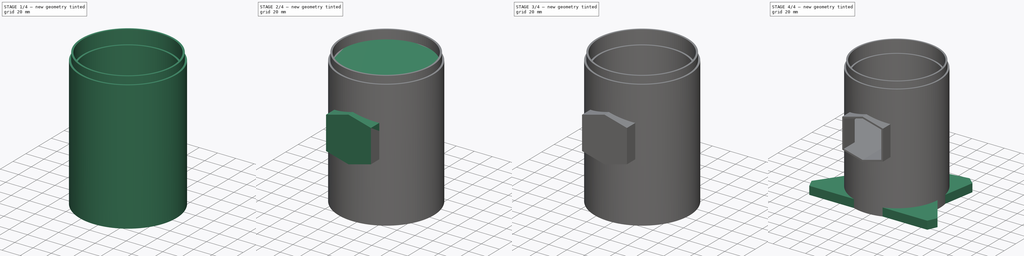
[diagram: build sequence overview — one tinted view per stage of 4, left to right]
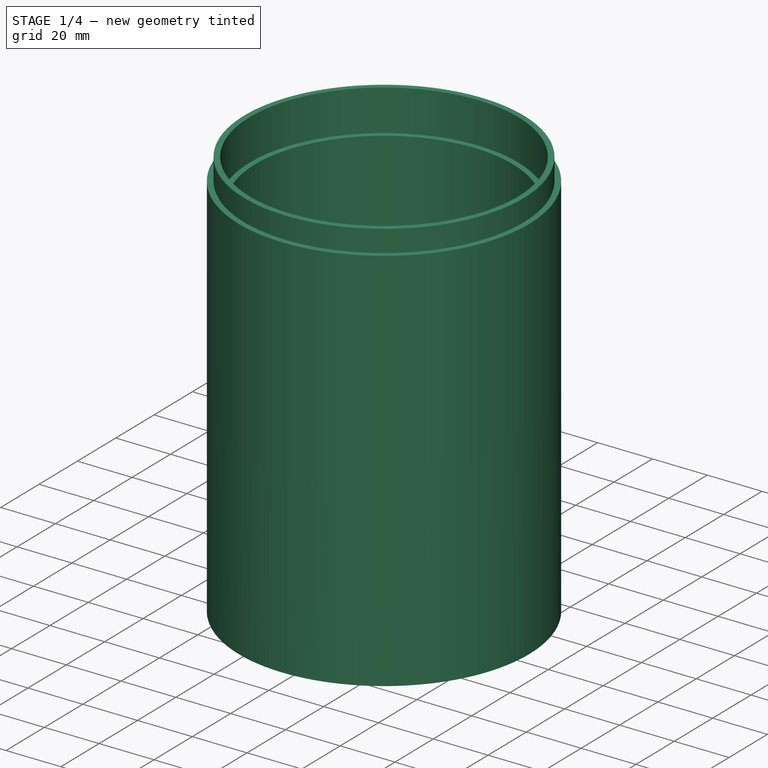
[diagram: stage 1 of 4 — iso view after this stage's code; geometry added in this stage tinted green]
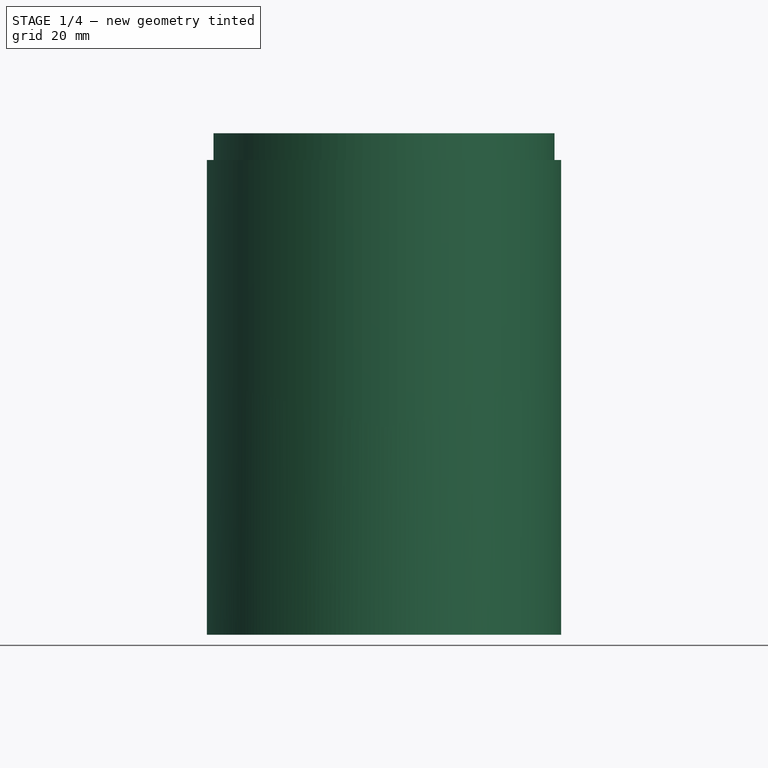
[diagram: stage 1 of 4 — front view after this stage's code; geometry added in this stage tinted green]
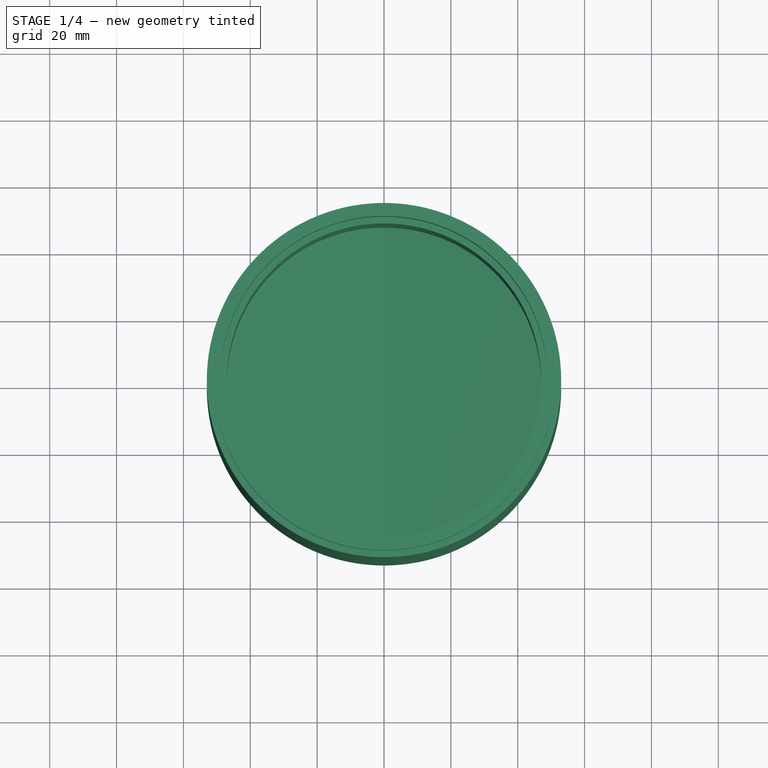
[diagram: stage 1 of 4 — top view after this stage's code; geometry added in this stage tinted green]
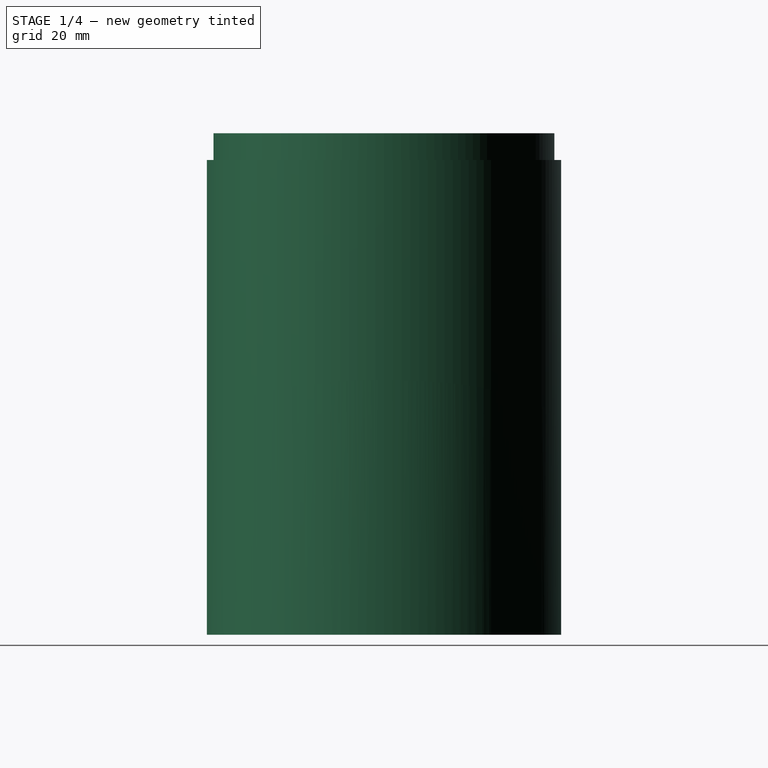
[diagram: stage 1 of 4 — right view after this stage's code; geometry added in this stage tinted green]
FCSTD DOCUMENT  (FreeCAD 0.20R28769 (Git))
Label: Aeroponics_Modular_4-Tower_Tower-Base
License: All rights reserved
LicenseURL: http://en.wikipedia.org/wiki/All_rights_reserved
objects: Sketcher::SketchObject×7, PartDesign::Body×7, PartDesign::Pad×6, Part::Cut×3, Part::MultiFuse×3, PartDesign::Revolution×1, PartDesign::FeatureBase×1
note: 35 computed .brp shape members not serialized (recipe doc carries the construction recipe); baked Part::Feature solids carry a one-line shape summary decoded from their .brp

FEATURE [Sketcher::SketchObject] Sketch
  FullyConstrained = true
  MapMode = 5
  Placement = pos=(0,0,0) rot=(1,0,0;1.5708rad)
  Support = -> [XZ_Plane]
  sketch-geometry (8):
    g0: LineSegment StartX=47 StartY=135 StartZ=0 EndX=47 EndY=0 EndZ=0
    g1: LineSegment StartX=47 StartY=0 StartZ=0 EndX=53 EndY=0 EndZ=0
    g2: LineSegment StartX=47 StartY=135 StartZ=0 EndX=49 EndY=135 EndZ=0
    g3: LineSegment StartX=49 StartY=135 StartZ=0 EndX=49 EndY=150 EndZ=0
    g4: LineSegment StartX=49 StartY=150 StartZ=0 EndX=51 EndY=150 EndZ=0
    g5: LineSegment StartX=51 StartY=150 StartZ=0 EndX=51 EndY=142 EndZ=0
    g6: LineSegment StartX=51 StartY=142 StartZ=0 EndX=53 EndY=142 EndZ=0
    g7: LineSegment StartX=53 StartY=142 StartZ=0 EndX=53 EndY=0 EndZ=0
  constraints (24):
    c: Vertical(g0)
    c: Coincident(g1,g0)
    c: Horizontal(g1)
    c: Coincident(g2,g0)
    c: Horizontal(g2)
    c: Coincident(g3,g2)
    c: Vertical(g3)
    c: Coincident(g4,g3)
    c: Coincident(g5,g4)
    c: Vertical(g5)
    c: Coincident(g6,g5)
    c: Horizontal(g6)
    c: Coincident(g7,g6)
    c: Coincident(g7,g1)
    c: Vertical(g7)
    c: Horizontal(g4)
    c: DistanceX(g6,g6) = 2
    c: DistanceX(g4,g4) = 2
    c: DistanceX(g2,g2) = 2
    c: DistanceX(g-1,g1) = 53
    c: DistanceY(g5,g5) = 8
    c: DistanceY(g3,g3) = 15
    c: DistanceY(g-1,g1) = 0
    c: DistanceY(g-1,g4) = 150
FEATURE [PartDesign::Revolution] Revolution
  Angle = 360
  Axis = (0,-2e-16,1)
  Base = (0,0,0)
  Placement = pos=(0,0,0) rot=(1,0,0;1.5708rad)
  Profile = -> Sketch
  ReferenceAxis = -> Sketch [V_Axis]
  Reversed = true
FEATURE [PartDesign::Body] Body002
  Group = -> [Sketch003,Pad002]
  Origin = -> Origin002
  Tip = -> Pad002
FEATURE [Sketcher::SketchObject] Sketch004
  FullyConstrained = true
  MapMode = 5
  Placement = pos=(0,0,0) rot=(1,0,0;1.5708rad)
  Support = -> [XZ_Plane003]
  sketch-geometry (6):
    g0: LineSegment StartX=0 StartY=62 StartZ=0 EndX=-57.9555 EndY=77.5291 EndZ=0
    g1: LineSegment StartX=-57.9555 StartY=77.5291 StartZ=0 EndX=-57.9555 EndY=0 EndZ=0
    g2: LineSegment StartX=-57.9555 StartY=0 StartZ=0 EndX=0 EndY=0 EndZ=0
    g3: LineSegment StartX=0 StartY=62 StartZ=0 EndX=57.9555 EndY=77.5291 EndZ=0
    g4: LineSegment StartX=0 StartY=0 StartZ=0 EndX=57.9555 EndY=0 EndZ=0
    g5: LineSegment StartX=57.9555 StartY=0 StartZ=0 EndX=57.9555 EndY=77.5291 EndZ=0
  constraints (17):
    c: PointOnObject(g0,g-2)
    c: Coincident(g1,g0)
    c: Vertical(g1)
    c: Coincident(g2,g1)
    c: Coincident(g3,g0)
    c: Coincident(g4,g2)
    c: Coincident(g5,g4)
    c: Coincident(g5,g3)
    c: Angle(g3,g0) = 2.61799
    c: Vertical(g5)
    c: DistanceY(g-1,g0) = 62
    c: Horizontal(g3,g0)
    c: Equal(g0,g3)
    c: Distance(g0) = 60
    c: Horizontal(g1,g2)
    c: Horizontal(g2,g4)
    c: Coincident(g2,g-1)
FEATURE [PartDesign::Pad] Pad003
  Direction = (0,-1,-2e-16)
  Length = 120
  Length2 = 10
  Midplane = true
  Placement = pos=(0,0,0) rot=(1,0,0;1.5708rad)
  Profile = -> Sketch004
  ReferenceAxis = -> Sketch004 [N_Axis]
  Type = 0
FEATURE [PartDesign::Body] Body003
  Group = -> [Sketch004,Pad003]
  Origin = -> Origin003
  Tip = -> Pad003
FEATURE [Sketcher::SketchObject] Sketch005
  FullyConstrained = true
  MapMode = 5
  Support = -> [XY_Plane004]
  sketch-geometry (2):
    g0: Circle CenterX=0 CenterY=0 CenterZ=0 NormalX=0 NormalY=0 NormalZ=1 AngleXU=0 Radius=53
    g1: Circle CenterX=0 CenterY=0 CenterZ=0 NormalX=0 NormalY=0 NormalZ=1 AngleXU=0 Radius=90
  constraints (4):
    c: Coincident(g0,g-1)
    c: Diameter(g0) = 106
    c: Coincident(g1,g0)
    c: Diameter(g1) = 180
FEATURE [PartDesign::Pad] Pad004
  Direction = (0,0,1)
  Length = 100
  Length2 = 10
  Profile = -> Sketch005
  ReferenceAxis = -> Sketch005 [N_Axis]
  Type = 0
FEATURE [PartDesign::Body] Body004
  Group = -> [Sketch005,Pad004]
  Origin = -> Origin004
  Tip = -> Pad004
FEATURE [Part::Cut] Cut
  Base = -> Body003
  Tool = -> Body004
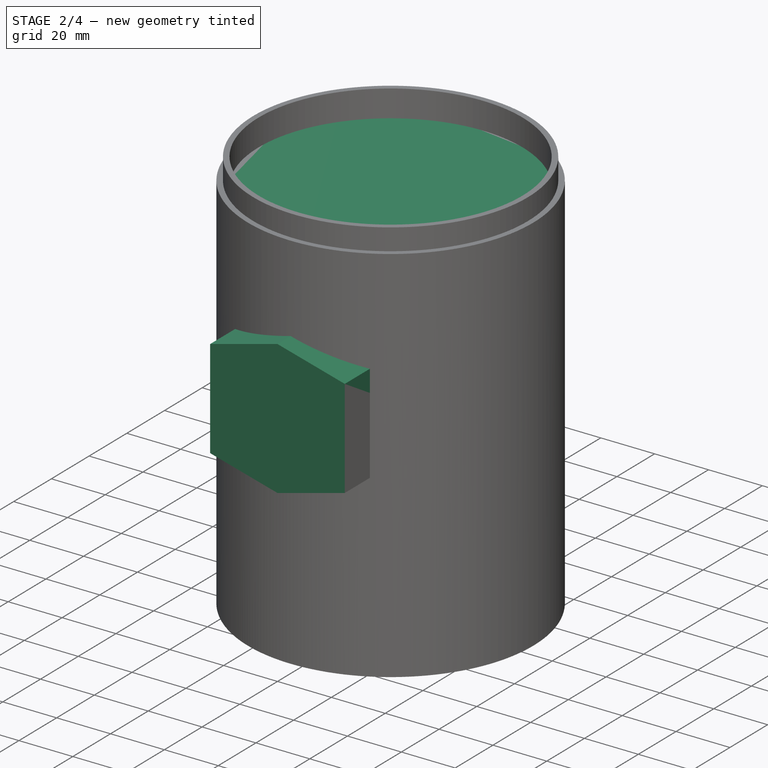
[diagram: stage 2 of 4 — iso view after this stage's code; geometry added in this stage tinted green]
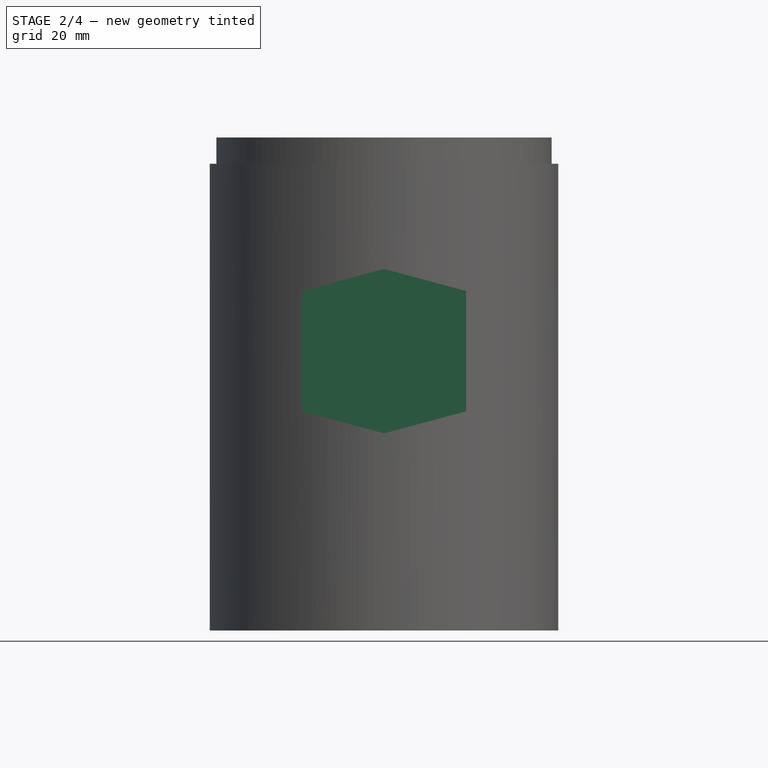
[diagram: stage 2 of 4 — front view after this stage's code; geometry added in this stage tinted green]
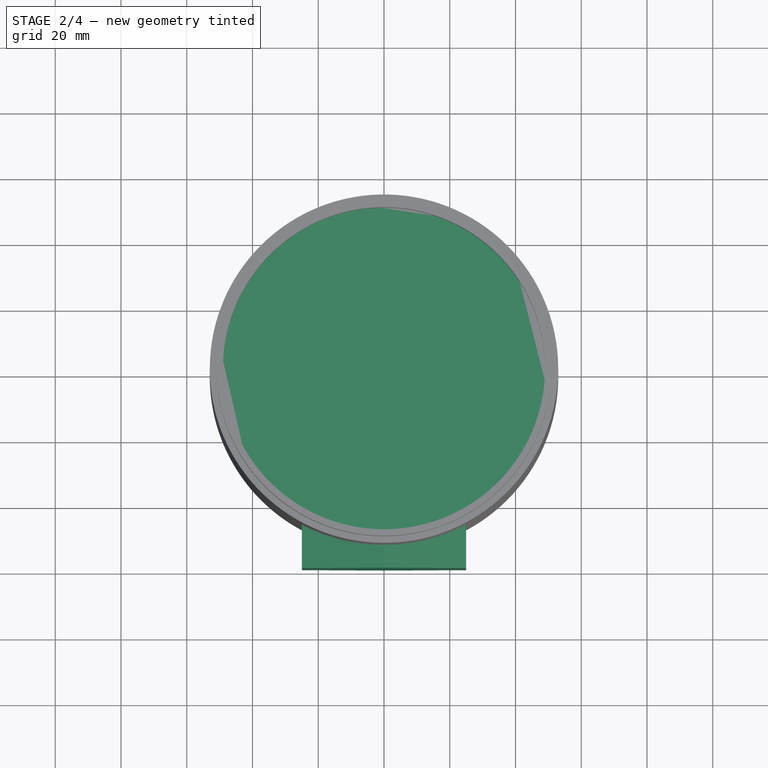
[diagram: stage 2 of 4 — top view after this stage's code; geometry added in this stage tinted green]
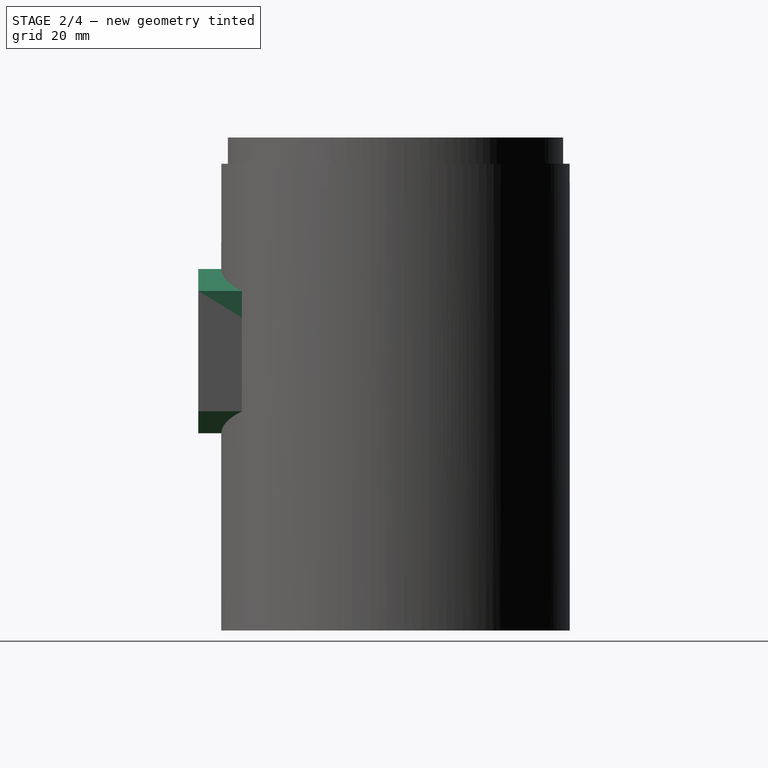
[diagram: stage 2 of 4 — right view after this stage's code; geometry added in this stage tinted green]
FEATURE [Sketcher::SketchObject] Sketch006
  FullyConstrained = true
  MapMode = 5
  Placement = pos=(0,0,0) rot=(1,0,0;1.5708rad)
  Support = -> [XZ_Plane005]
  sketch-geometry (6):
    g0: LineSegment StartX=0 StartY=110 StartZ=0 EndX=-25 EndY=103.301 EndZ=0
    g1: LineSegment StartX=-25 StartY=103.301 StartZ=0 EndX=-25 EndY=66.6987 EndZ=0
    g2: LineSegment StartX=-25 StartY=66.6987 StartZ=0 EndX=0 EndY=60 EndZ=0
    g3: LineSegment StartX=0 StartY=60 StartZ=0 EndX=25 EndY=66.6987 EndZ=0
    g4: LineSegment StartX=25 StartY=66.6987 StartZ=0 EndX=25 EndY=103.301 EndZ=0
    g5: LineSegment StartX=25 StartY=103.301 StartZ=0 EndX=0 EndY=110 EndZ=0
  constraints (18):
    c: PointOnObject(g0,g-2)
    c: Coincident(g0,g1)
    c: Vertical(g1)
    c: Coincident(g1,g2)
    c: PointOnObject(g2,g-2)
    c: Coincident(g2,g3)
    c: Coincident(g3,g4)
    c: Vertical(g4)
    c: Coincident(g4,g5)
    c: Coincident(g5,g0)
    c: Angle(g0,g5) = 2.61799
    c: Angle(g3,g2) = 2.61799
    c: DistanceY(g2,g0) = 50
    c: Equal(g4,g1)
    c: Horizontal(g3,g1)
    c: DistanceX(g1,g3) = 50
    c: DistanceY(g-1,g2) = 60
    c: Equal(g2,g3)
FEATURE [PartDesign::Pad] Pad005
  Direction = (0,-1,-2e-16)
  Length = 60
  Length2 = 10
  Placement = pos=(0,0,0) rot=(1,0,0;1.5708rad)
  Profile = -> Sketch006
  ReferenceAxis = -> Sketch006 [N_Axis]
  Type = 0
FEATURE [PartDesign::Body] Body005
  Group = -> [Sketch006,Pad005]
  Origin = -> Origin005
  Tip = -> Pad005
FEATURE [Sketcher::SketchObject] Sketch007
  FullyConstrained = true
  MapMode = 5
  Support = -> [XY_Plane006]
  sketch-geometry (1):
    g0: Circle CenterX=0 CenterY=0 CenterZ=0 NormalX=0 NormalY=0 NormalZ=1 AngleXU=0 Radius=53
  constraints (2):
    c: Coincident(g0,g-1)
    c: Diameter(g0) = 106
FEATURE [PartDesign::Pad] Pad006
  Direction = (0,0,1)
  Length = 140
  Length2 = 10
  Profile = -> Sketch007
  ReferenceAxis = -> Sketch007 [N_Axis]
  Type = 0
FEATURE [Part::MultiFuse] Fusion
  Shapes = -> [Cut,Body]
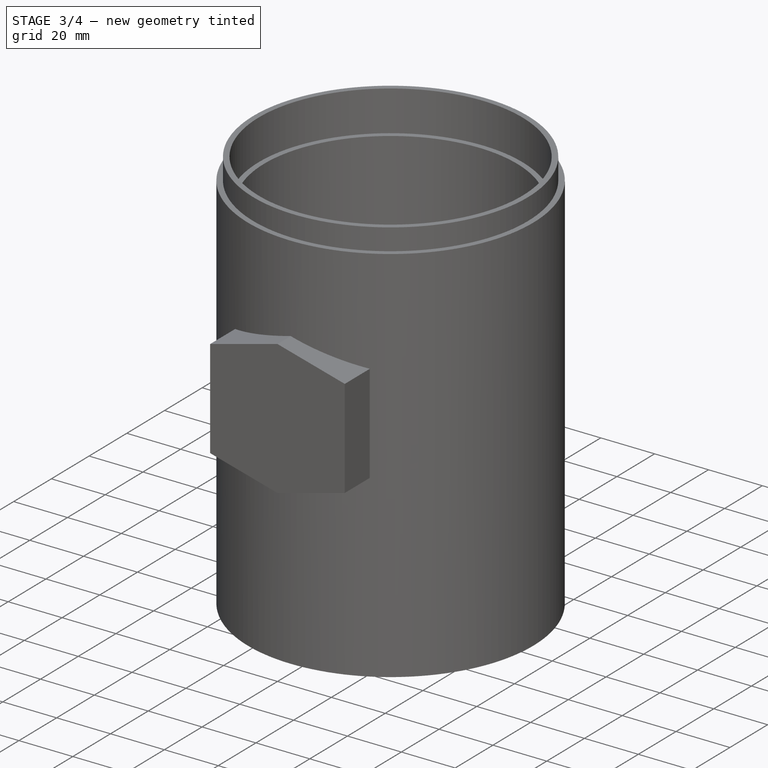
[diagram: stage 3 of 4 — iso view after this stage's code; geometry added in this stage tinted green]
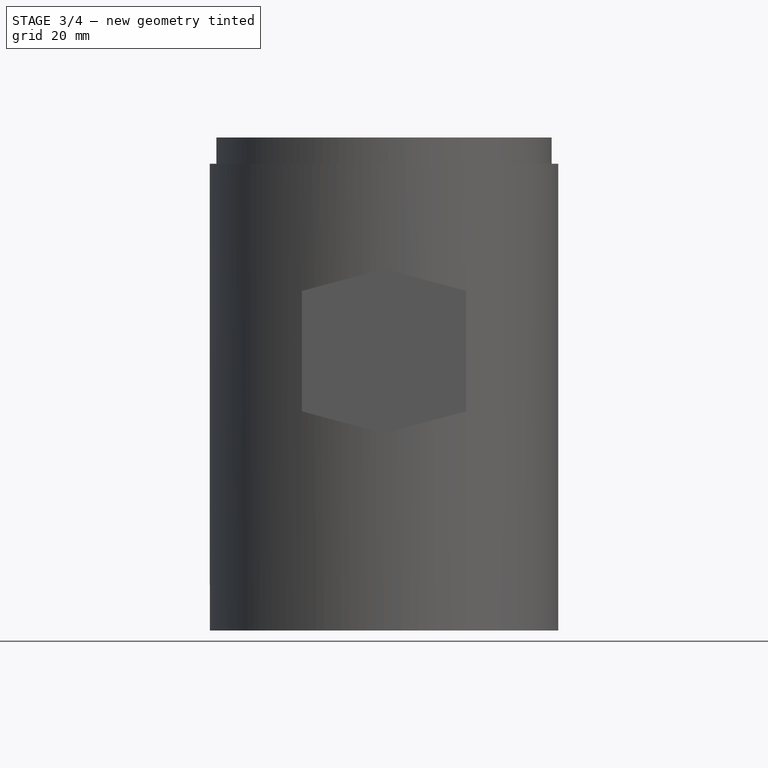
[diagram: stage 3 of 4 — front view after this stage's code; geometry added in this stage tinted green]
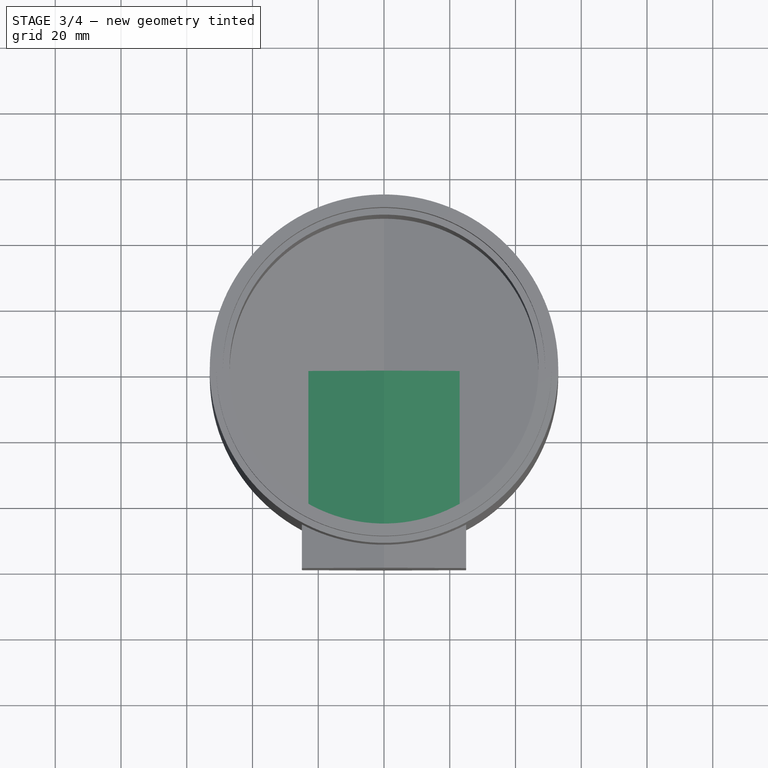
[diagram: stage 3 of 4 — top view after this stage's code; geometry added in this stage tinted green]
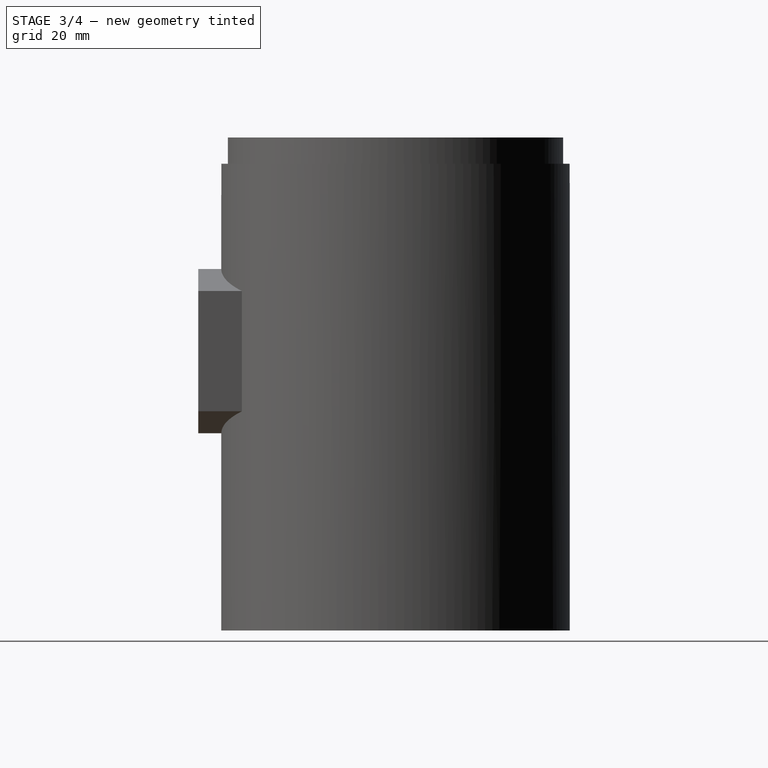
[diagram: stage 3 of 4 — right view after this stage's code; geometry added in this stage tinted green]
FEATURE [PartDesign::Body] Body
  Group = -> [Sketch,Revolution]
  Origin = -> Origin
  Tip = -> Revolution
FEATURE [Sketcher::SketchObject] Sketch003
  FullyConstrained = true
  MapMode = 5
  Placement = pos=(0,0,0) rot=(1,0,0;1.5708rad)
  Support = -> [XZ_Plane002]
  sketch-geometry (6):
    g0: LineSegment StartX=0 StartY=108 StartZ=0 EndX=-23 EndY=101.837 EndZ=0
    g1: LineSegment StartX=-23 StartY=101.837 StartZ=0 EndX=-23 EndY=68.1628 EndZ=0
    g2: LineSegment StartX=0 StartY=108 StartZ=0 EndX=23 EndY=101.837 EndZ=0
    g3: LineSegment StartX=23 StartY=101.837 StartZ=0 EndX=23 EndY=68.1628 EndZ=0
    g4: LineSegment StartX=23 StartY=68.1628 StartZ=0 EndX=0 EndY=62 EndZ=0
    g5: LineSegment StartX=0 StartY=62 StartZ=0 EndX=-23 EndY=68.1628 EndZ=0
  constraints (18):
    c: PointOnObject(g0,g-2)
    c: Coincident(g1,g0)
    c: Vertical(g1)
    c: Coincident(g0,g2)
    c: Coincident(g2,g3)
    c: Vertical(g3)
    c: Coincident(g3,g4)
    c: PointOnObject(g4,g-2)
    c: Coincident(g4,g5)
    c: Coincident(g5,g1)
    c: Equal(g1,g3)
    c: Horizontal(g1,g3)
    c: Equal(g0,g2)
    c: DistanceY(g4,g0) = 46
    c: Equal(g0,g5)
    c: DistanceX(g1,g3) = 46
    c: DistanceY(g-1,g4) = 62
    c: Angle(g4,g5) = 2.61799
FEATURE [PartDesign::Pad] Pad002
  Direction = (0,-1,-2e-16)
  Length = 60
  Length2 = 10
  Placement = pos=(0,0,0) rot=(1,0,0;1.5708rad)
  Profile = -> Sketch003
  ReferenceAxis = -> Sketch003 [N_Axis]
  Type = 0
FEATURE [PartDesign::Body] Body006
  Group = -> [Sketch007,Pad006]
  Origin = -> Origin006
  Tip = -> Pad006
FEATURE [Part::Cut] Cut001
  Base = -> Body005
  Tool = -> Body006
FEATURE [Part::MultiFuse] Fusion001
  Shapes = -> [Cut001,Fusion]
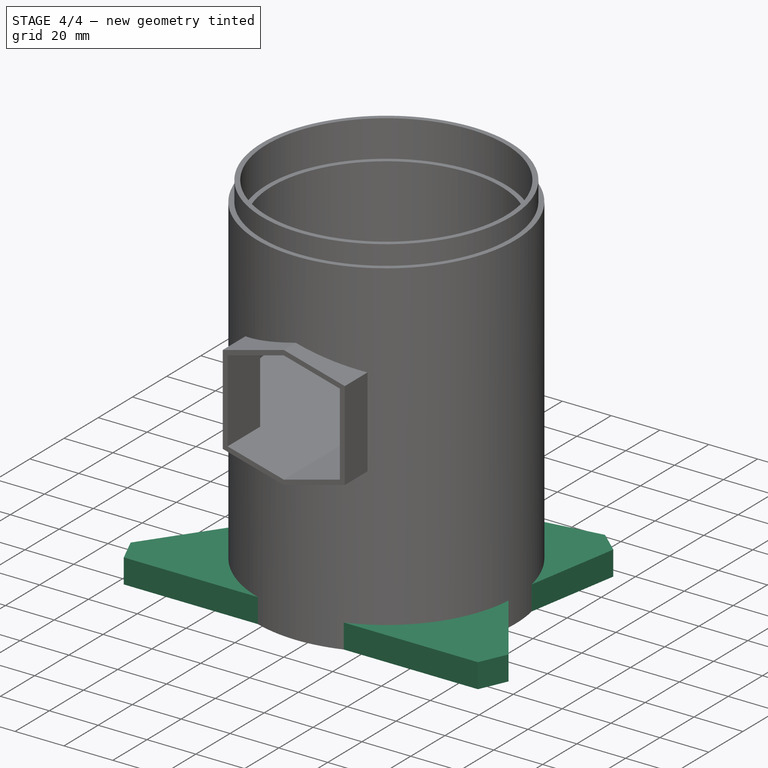
[diagram: stage 4 of 4 — iso view after this stage's code; geometry added in this stage tinted green]
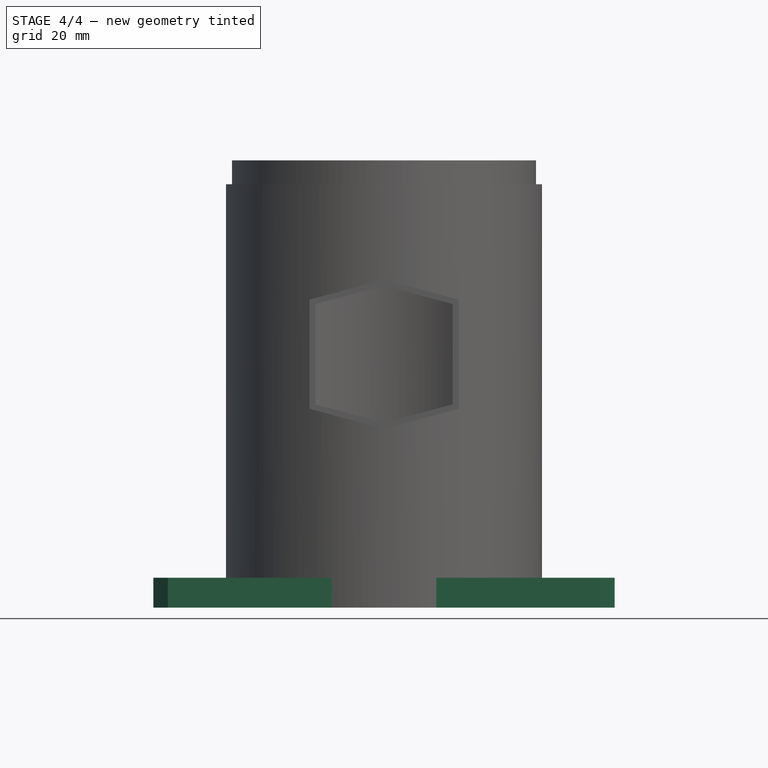
[diagram: stage 4 of 4 — front view after this stage's code; geometry added in this stage tinted green]
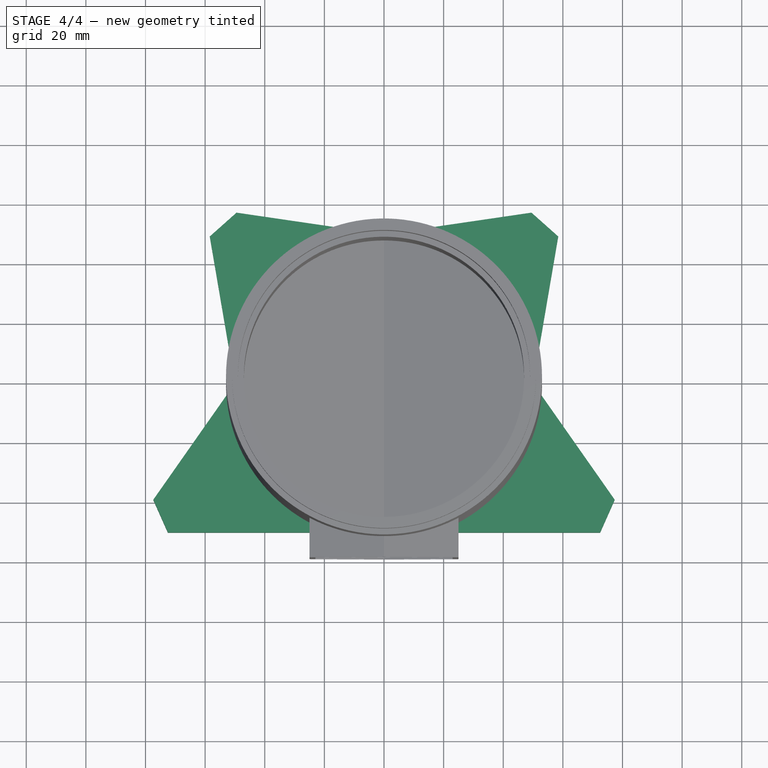
[diagram: stage 4 of 4 — top view after this stage's code; geometry added in this stage tinted green]
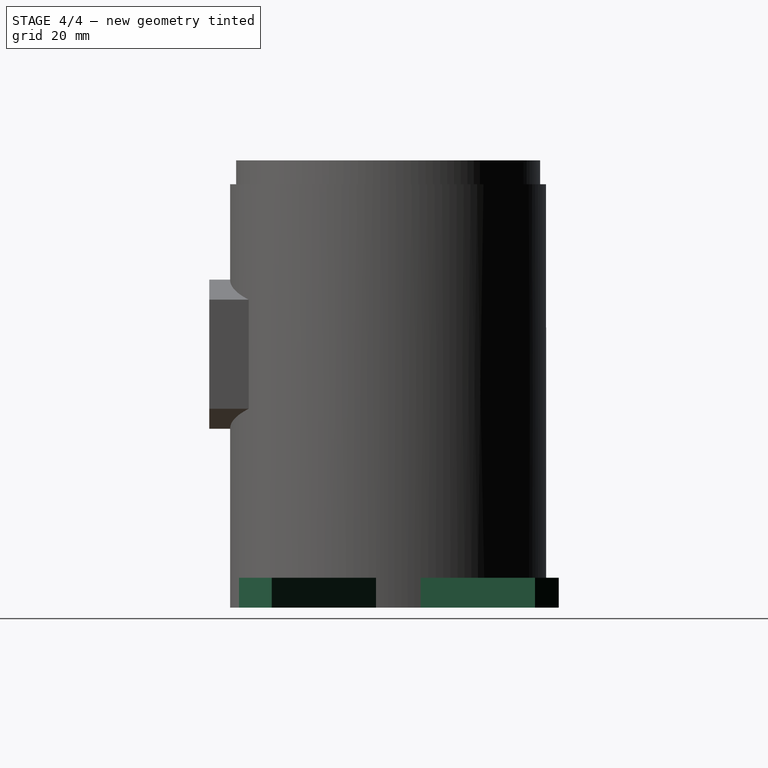
[diagram: stage 4 of 4 — right view after this stage's code; geometry added in this stage tinted green]
FEATURE [Part::Cut] Cut002
  Base = -> Fusion001
  Tool = -> Body002
FEATURE [PartDesign::FeatureBase] BaseFeature
  BaseFeature = -> Cut002
FEATURE [Sketcher::SketchObject] Sketch008
  FullyConstrained = true
  MapMode = 5
  Support = -> [XY_Plane007]
  sketch-geometry (11):
    g0: LineSegment StartX=77.3808 StartY=-39.0375 StartZ=0 EndX=72.5 EndY=-50 EndZ=0
    g1: LineSegment StartX=-72.5 StartY=-50 StartZ=0 EndX=-77.3808 EndY=-39.0375 EndZ=0
    g2: LineSegment StartX=-72.5 StartY=-50 StartZ=0 EndX=72.5 EndY=-50 EndZ=0
    g3: LineSegment StartX=49.4703 StartY=57.2585 StartZ=0 EndX=58.4366 EndY=49.2831 EndZ=0
    g4: LineSegment StartX=58.4366 StartY=49.2831 StartZ=0 EndX=50 EndY=0 EndZ=0
    g5: LineSegment StartX=49.4703 StartY=57.2585 StartZ=0 EndX=0 EndY=50 EndZ=0
    g6: LineSegment StartX=0 StartY=50 StartZ=0 EndX=-49.4703 EndY=57.2585 EndZ=0
    g7: LineSegment StartX=-49.4703 StartY=57.2585 StartZ=0 EndX=-58.4366 EndY=49.2831 EndZ=0
    g8: LineSegment StartX=-58.4366 StartY=49.2831 StartZ=0 EndX=-50 EndY=0 EndZ=0
    g9: LineSegment StartX=-50 StartY=0 StartZ=0 EndX=-77.3808 EndY=-39.0375 EndZ=0
    g10: LineSegment StartX=50 StartY=0 StartZ=0 EndX=77.3808 EndY=-39.0375 EndZ=0
  constraints (28):
    c: Coincident(g2,g0)
    c: Coincident(g2,g1)
    c: Coincident(g3,g4)
    c: Coincident(g3,g5)
    c: PointOnObject(g6,g-2)
    c: Coincident(g6,g7)
    c: Coincident(g7,g8)
    c: Coincident(g9,g8)
    c: Coincident(g9,g1)
    c: Coincident(g5,g6)
    c: Symmetric(g6,g3,g-2)
    c: Symmetric(g7,g3,g-2)
    c: Symmetric(g8,g4,g-2)
    c: Coincident(g10,g4)
    c: Coincident(g10,g0)
    c: Equal(g7,g1)
    c: Distance(g5) = 50
    c: Distance(g4) = 50
    c: DistanceY(g-1,g5) = 50
    c: DistanceX(g-1,g4) = 50
    c: Angle(g7,g6) = 2.26893
    c: DistanceX(g2,g2) = 145
    c: Horizontal(g-1,g4)
    c: DistanceY(g0,g-1) = 50
    c: Angle(g0) = -1.98968
    c: Symmetric(g0,g1,g-2)
    c: Symmetric(g0,g1,g-2)
    c: Distance(g1) = 12
FEATURE [PartDesign::Pad] Pad
  BaseFeature = -> BaseFeature
  Direction = (0,0,1)
  Length = 10
  Length2 = 10
  Profile = -> Sketch008
  ReferenceAxis = -> Sketch008 [N_Axis]
  Type = 0
FEATURE [PartDesign::Body] Body007
  BaseFeature = -> Cut002
  Group = -> [BaseFeature,Sketch008,Pad]
  Origin = -> Origin007
  Tip = -> Pad
FEATURE [Part::MultiFuse] Fusion002
  Shapes = -> [Cut002,Body007]
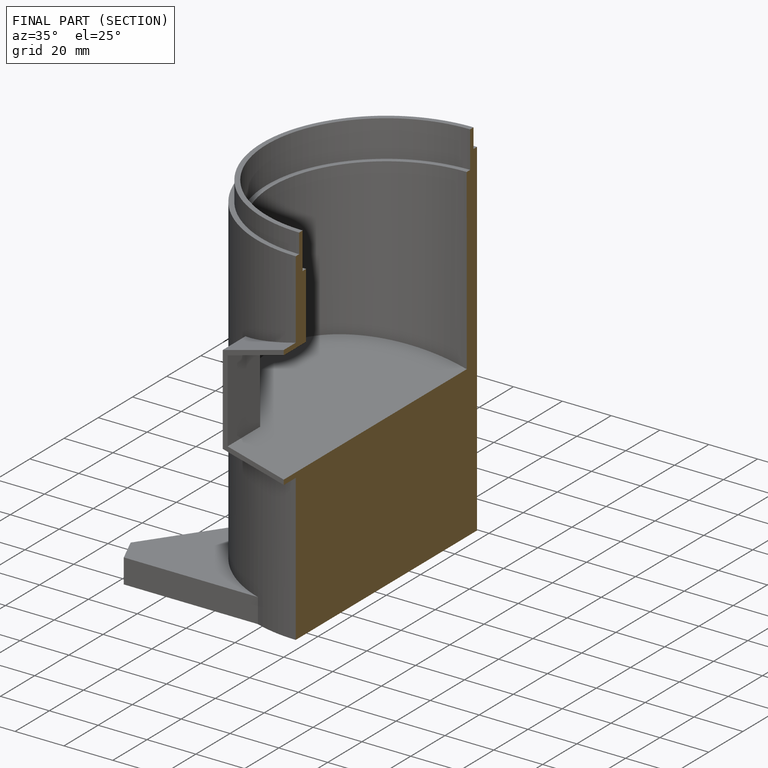
[diagram: finished part — half-section view (interior)]
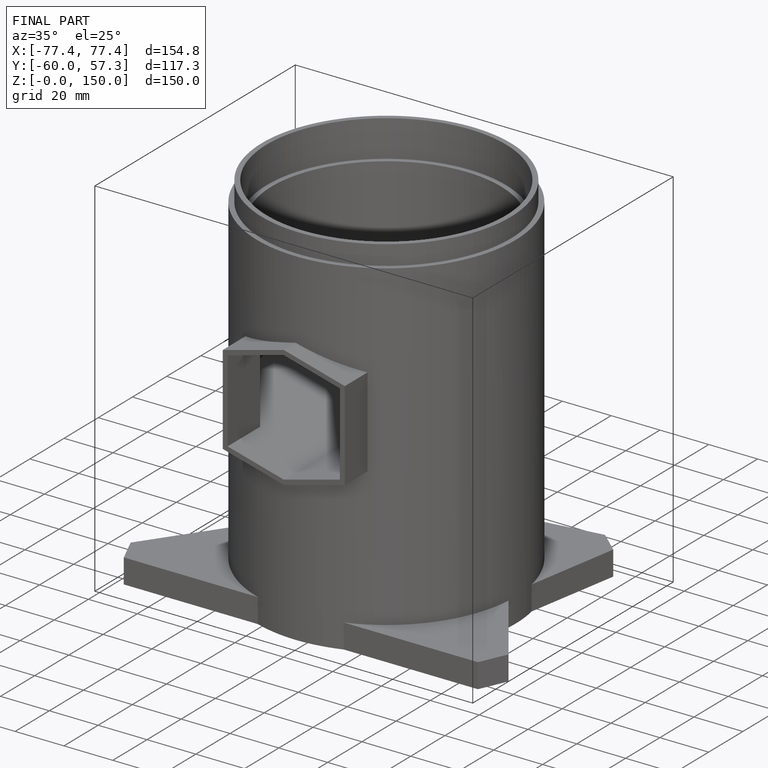
[diagram: finished part — iso view with bounding-box wireframe]
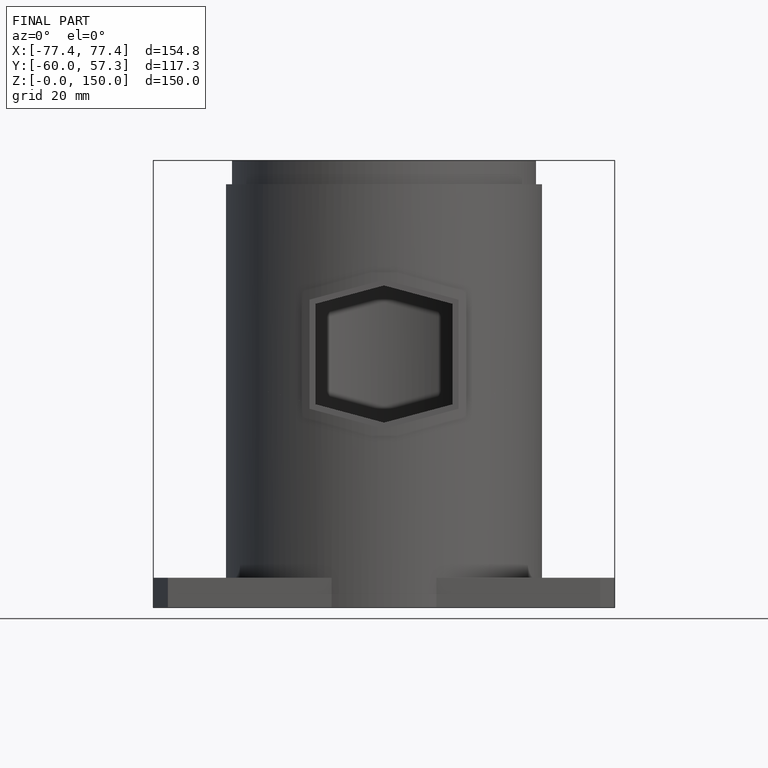
[diagram: finished part — front view with bounding-box wireframe]
